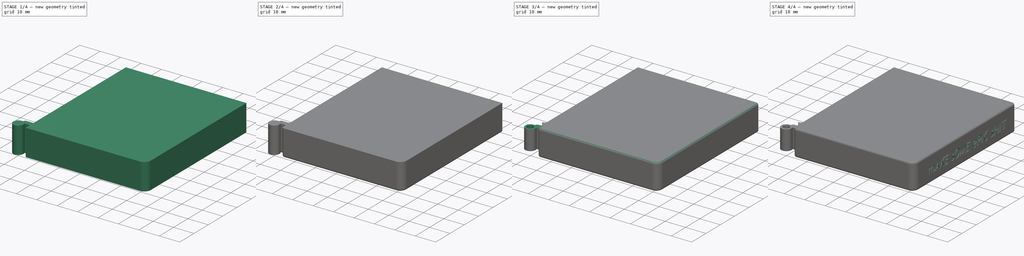
[diagram: build sequence overview — one tinted view per stage of 4, left to right]
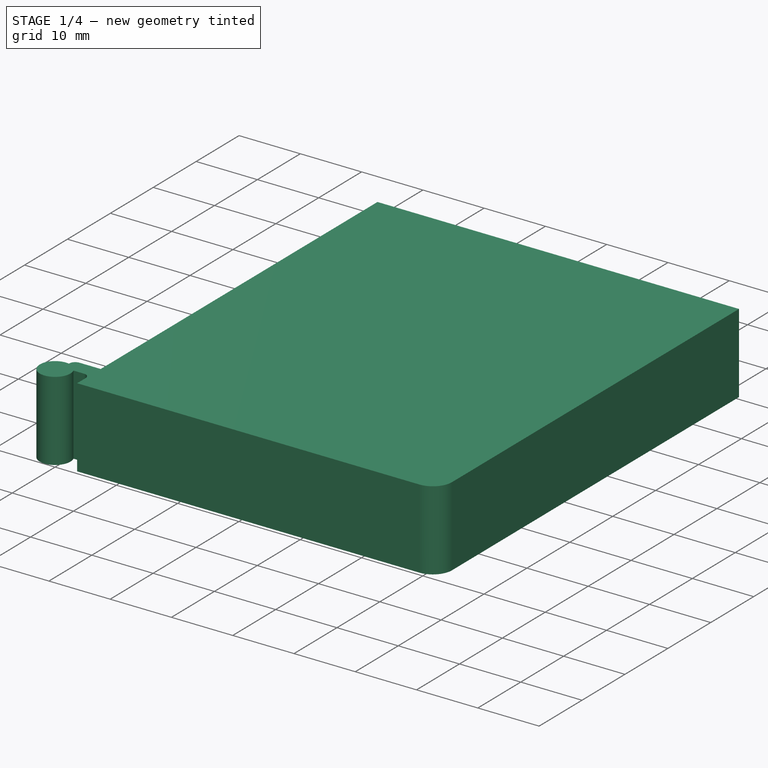
[diagram: stage 1 of 4 — iso view after this stage's code; geometry added in this stage tinted green]
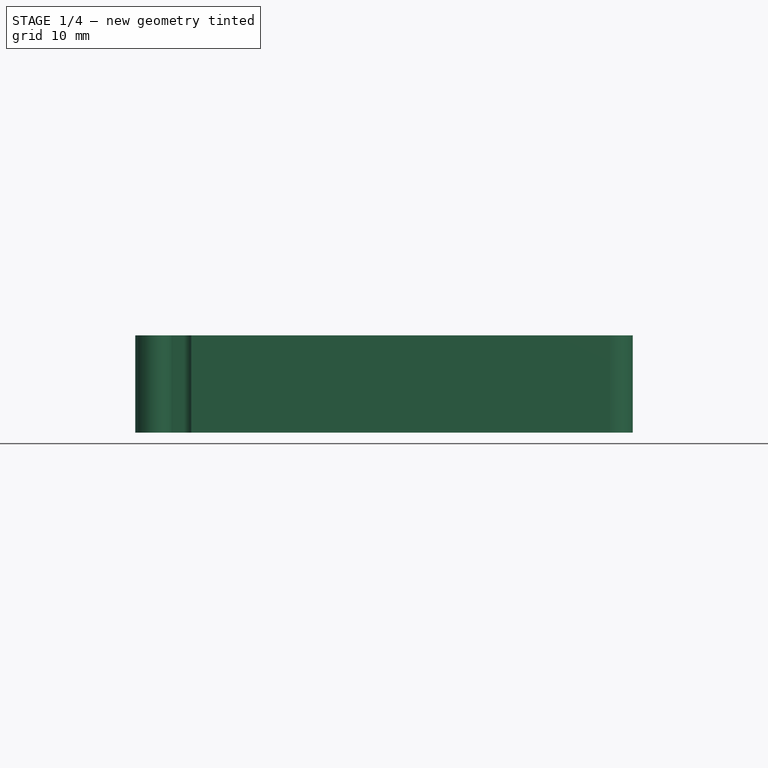
[diagram: stage 1 of 4 — front view after this stage's code; geometry added in this stage tinted green]
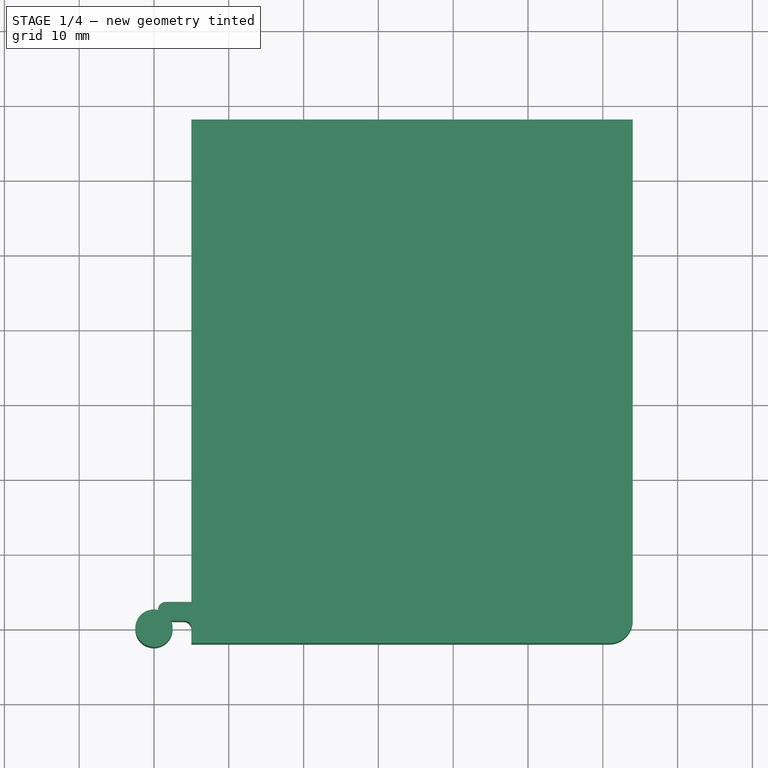
[diagram: stage 1 of 4 — top view after this stage's code; geometry added in this stage tinted green]
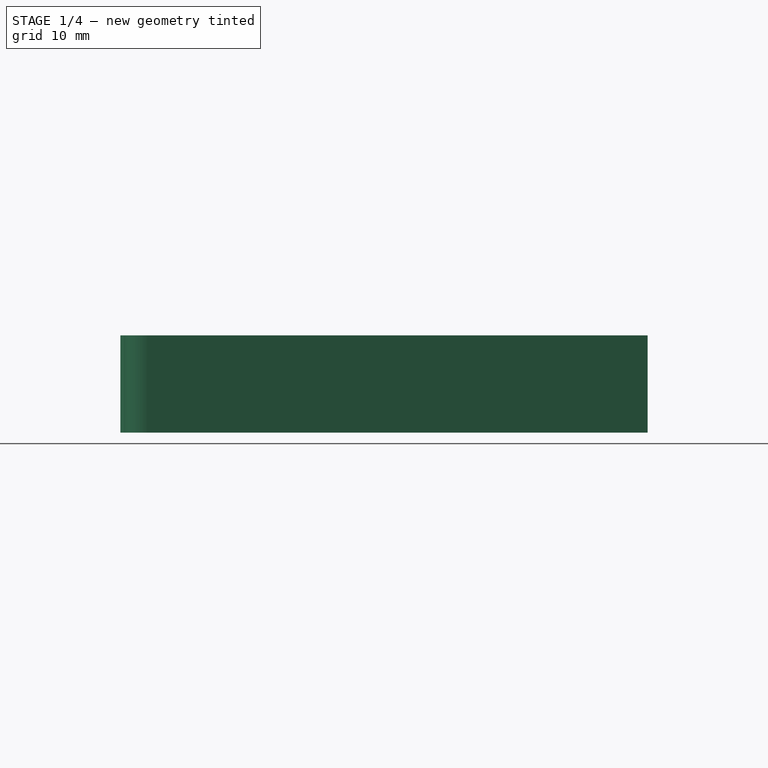
[diagram: stage 1 of 4 — right view after this stage's code; geometry added in this stage tinted green]
FCSTD DOCUMENT  (FreeCAD 1.0R39109 (Git))
Label: Card Holder 2
License: All rights reserved
LicenseURL: https://en.wikipedia.org/wiki/All_rights_reserved
objects: PartDesign::Fillet×6, Sketcher::SketchObject×5, PartDesign::Pocket×5, PartDesign::Plane×4, PartDesign::Pad×2, Part::Part2DObjectPython×2, PartDesign::Body×1
note: 56 computed .brp shape members not serialized (recipe doc carries the construction recipe); baked Part::Feature solids carry a one-line shape summary decoded from their .brp

FEATURE [Sketcher::SketchObject] Sketch
  ArcFitTolerance = 1e-06
  AttachmentSupport = -> [XY_Plane]
  FullyConstrained = true
  MakeInternals = false
  MapMode = 5
  sketch-geometry (11):
    g0: Circle CenterX=0 CenterY=0 CenterZ=0 NormalX=0 NormalY=0 NormalZ=1 AngleXU=0 Radius=2.5
    g1: LineSegment StartX=0.54 StartY=3.5 StartZ=0 EndX=0.54 EndY=1 EndZ=0
    g2: LineSegment StartX=0.54 StartY=1 StartZ=0 EndX=5 EndY=1 EndZ=0
    g3: LineSegment StartX=5 StartY=1 StartZ=0 EndX=5 EndY=3.5 EndZ=0
    g4: LineSegment StartX=5 StartY=3.5 StartZ=0 EndX=0.54 EndY=3.5 EndZ=0
    g5: LineSegment StartX=5 StartY=68 StartZ=0 EndX=5 EndY=-2 EndZ=0
    g6: LineSegment StartX=5 StartY=-2 StartZ=0 EndX=60.86 EndY=-2 EndZ=0
    g7: LineSegment StartX=64 StartY=1.14 StartZ=0 EndX=64 EndY=68 EndZ=0
    g8: LineSegment StartX=64 StartY=68 StartZ=0 EndX=5 EndY=68 EndZ=0
    g9: ArcOfCircle CenterX=60.86 CenterY=1.14 CenterZ=0 NormalX=0 NormalY=0 NormalZ=1 AngleXU=0 Radius=3.14 StartAngle=4.71239 EndAngle=6.28319
    g10: GeomPoint [constr] X=64 Y=-2 Z=0
  constraints (30):
    c: Coincident(g0,g-1)
    c: Diameter(g0) = 5
    c: Coincident(g1,g2)
    c: Coincident(g2,g3)
    c: Coincident(g3,g4)
    c: Coincident(g4,g1)
    c: Vertical(g1)
    c: Vertical(g3)
    c: Horizontal(g2)
    c: Horizontal(g4)
    c: DistanceY(g0,g1) = 1
    c: DistanceY(g1,g1) = 2.5
    c: DistanceX(g0,g1) = 0.54
    c: DistanceX(g0,g2) = 5
    c: Coincident(g5,g6)
    c: Coincident(g7,g8)
    c: Coincident(g8,g5)
    c: Vertical(g5)
    c: Vertical(g7)
    c: Horizontal(g6)
    c: Horizontal(g8)
    c: PointOnObject(g3,g5)
    c: DistanceX(g6,g10) = 59
    c: DistanceY(g5,g5) = 70
    c: DistanceY(g5,g2) = 3
    c: PointOnObject(g10,g6)
    c: PointOnObject(g10,g7)
    c: Tangent(g6,g9) = -1.5708
    c: Tangent(g7,g9) = -1.5708
    c: Radius(g9) = 3.14
FEATURE [PartDesign::Pad] Pad
  Direction = (0,0,1)
  Length = 13
  Length2 = 10
  Profile = -> Sketch
  ReferenceAxis = -> Sketch [N_Axis]
  Refine = true
  Suppressed = false
  Type = 0
FEATURE [PartDesign::Fillet] Fillet
  Base = -> Pad [Edge4]
  BaseFeature = -> Pad
  Radius = 1
  Refine = true
  SupportTransform = false
  Suppressed = false
  UseAllEdges = false
FEATURE [PartDesign::Fillet] Fillet001
  Base = -> Fillet [Edge34]
  BaseFeature = -> Fillet
  Radius = 1
  Refine = true
  SupportTransform = false
  Suppressed = false
  UseAllEdges = false
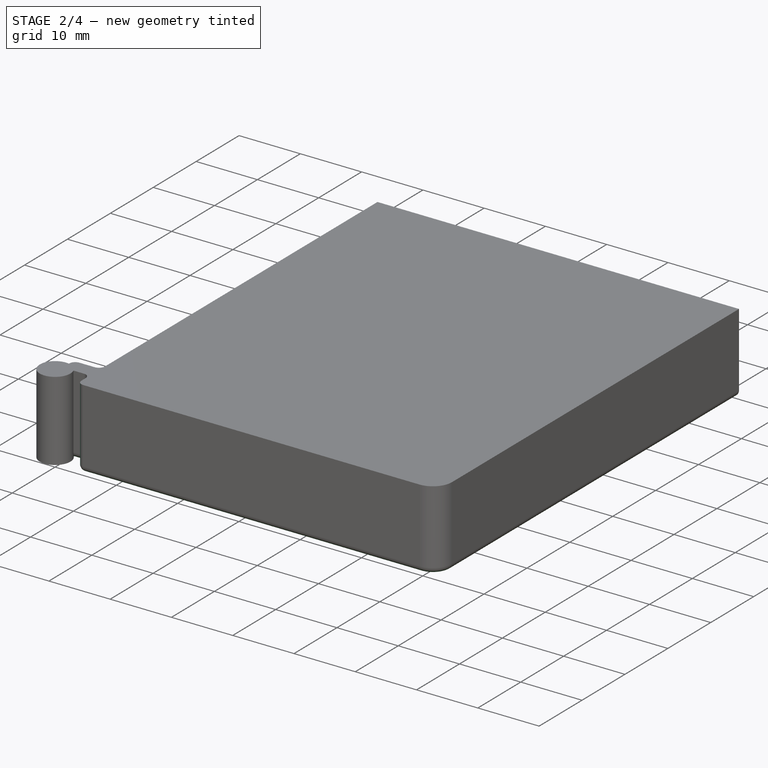
[diagram: stage 2 of 4 — iso view after this stage's code; geometry added in this stage tinted green]
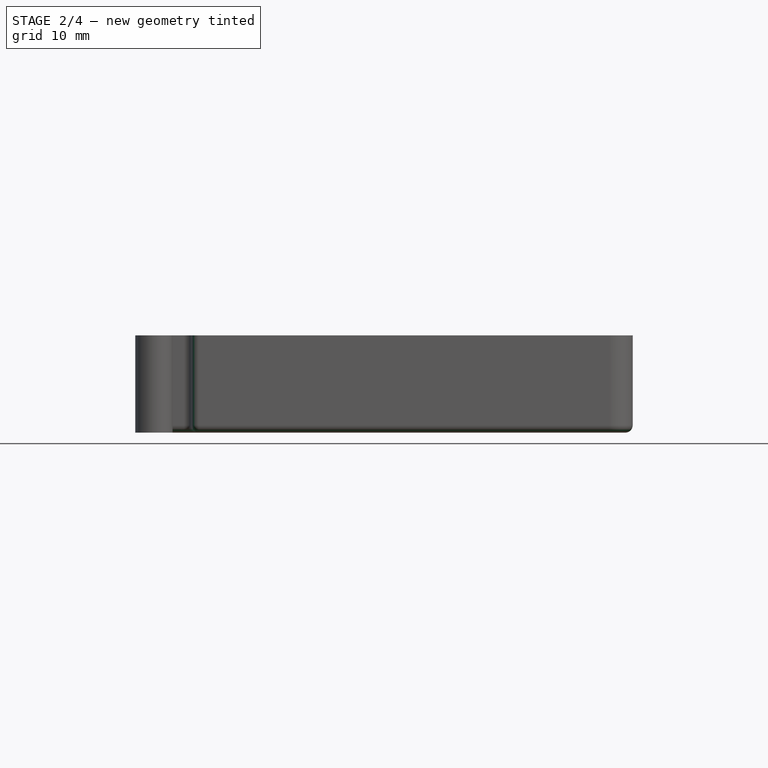
[diagram: stage 2 of 4 — front view after this stage's code; geometry added in this stage tinted green]
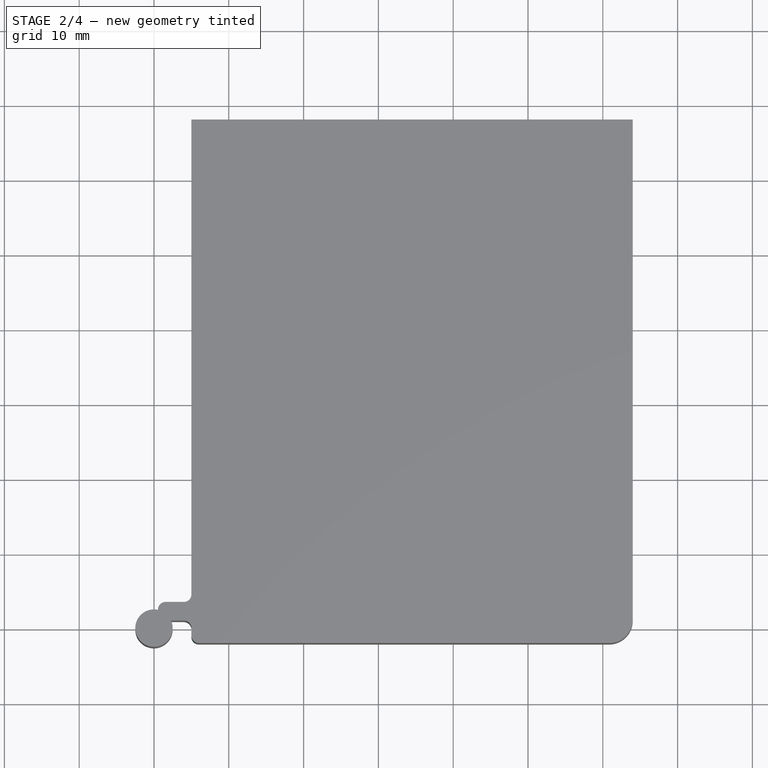
[diagram: stage 2 of 4 — top view after this stage's code; geometry added in this stage tinted green]
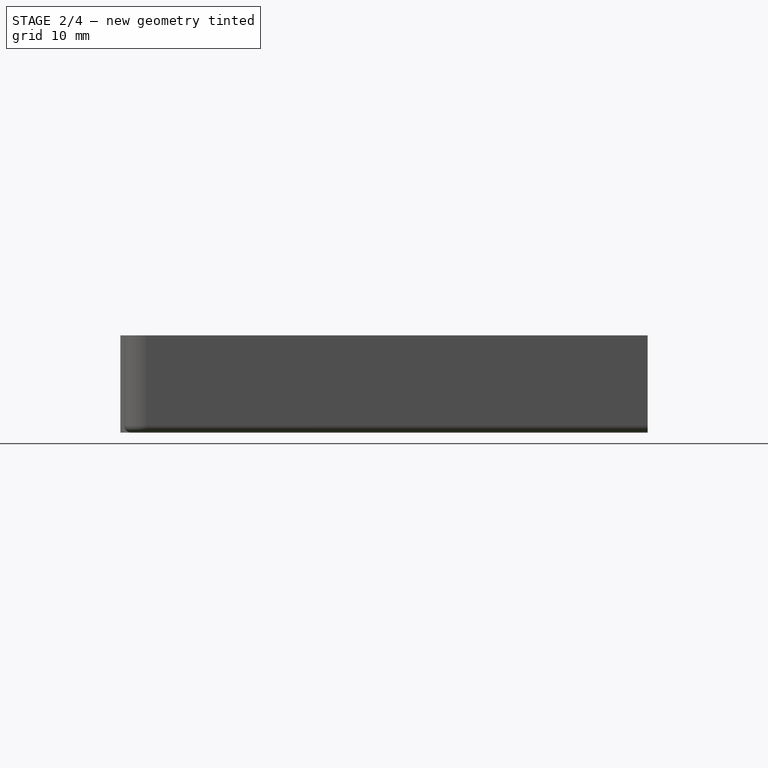
[diagram: stage 2 of 4 — right view after this stage's code; geometry added in this stage tinted green]
FEATURE [PartDesign::Fillet] Fillet002
  Base = -> Fillet001 [Edge22]
  BaseFeature = -> Fillet001
  Radius = 1
  Refine = true
  SupportTransform = false
  Suppressed = false
  UseAllEdges = false
FEATURE [PartDesign::Fillet] Fillet003
  Base = -> Fillet002 [Edge37]
  BaseFeature = -> Fillet002
  Radius = 1
  Refine = true
  SupportTransform = false
  Suppressed = false
  UseAllEdges = false
FEATURE [PartDesign::Fillet] Fillet004
  Base = -> Fillet003 [Edge1]
  BaseFeature = -> Fillet003
  Radius = 1
  Refine = true
  SupportTransform = false
  Suppressed = false
  UseAllEdges = false
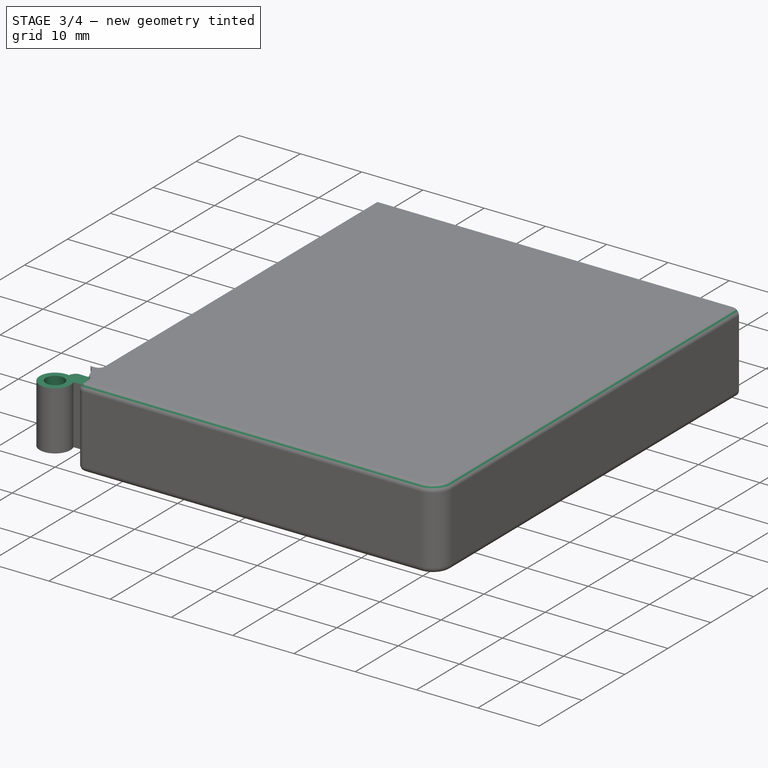
[diagram: stage 3 of 4 — iso view after this stage's code; geometry added in this stage tinted green]
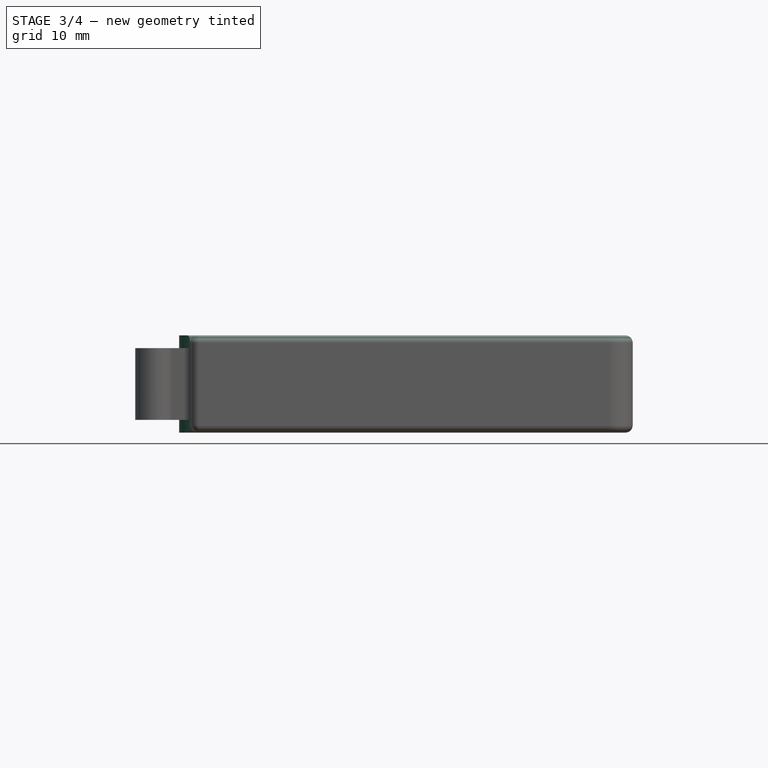
[diagram: stage 3 of 4 — front view after this stage's code; geometry added in this stage tinted green]
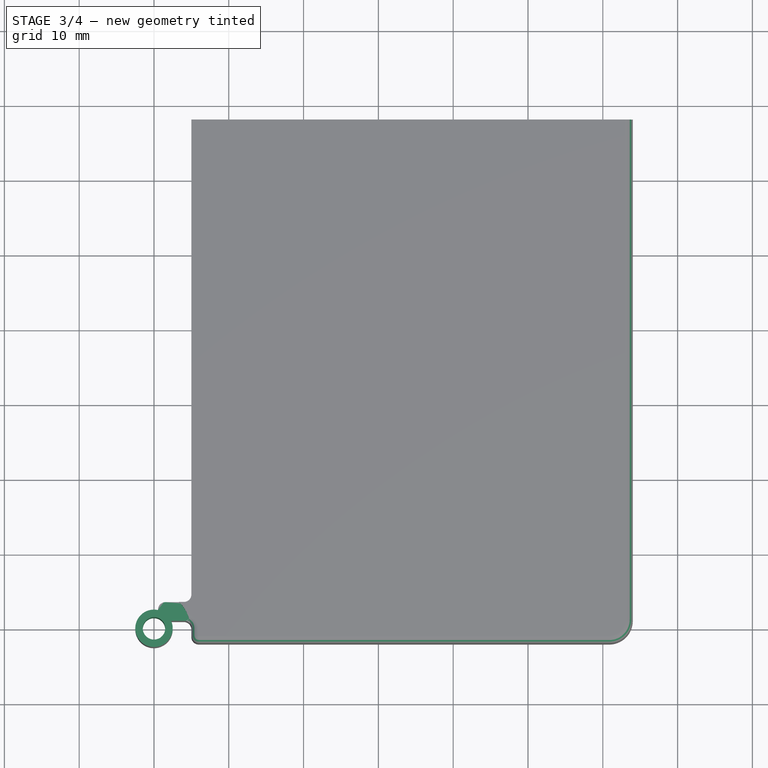
[diagram: stage 3 of 4 — top view after this stage's code; geometry added in this stage tinted green]
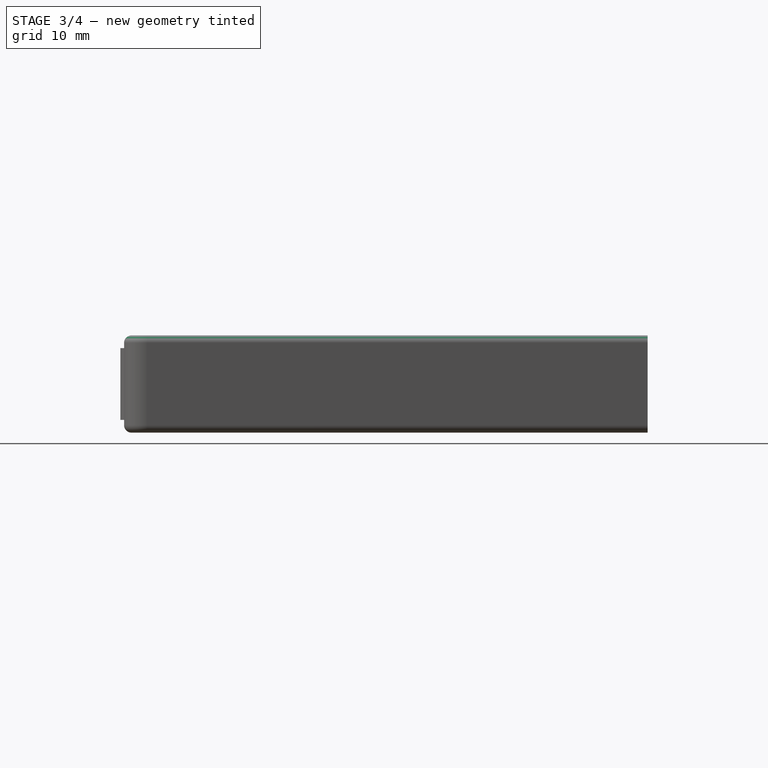
[diagram: stage 3 of 4 — right view after this stage's code; geometry added in this stage tinted green]
FEATURE [PartDesign::Fillet] Fillet005
  Base = -> Fillet004 [Edge48]
  BaseFeature = -> Fillet004
  Radius = 1
  Refine = true
  SupportTransform = false
  Suppressed = false
  UseAllEdges = false
FEATURE [PartDesign::Plane] DatumPlane
  AttachmentSupport = -> [Fillet005]
  Length = 60
  MapMode = 5
  Placement = pos=(0,0,13) rot=(0,0,1;0rad)
  ResizeMode = 0
  Width = 60
FEATURE [Sketcher::SketchObject] Sketch001
  ArcFitTolerance = 1e-06
  AttachmentSupport = -> [Fillet005]
  FullyConstrained = true
  MakeInternals = false
  MapMode = 5
  Placement = pos=(0,0,13) rot=(0,0,1;0rad)
  sketch-geometry (1):
    g0: Circle CenterX=0 CenterY=0 CenterZ=0 NormalX=0 NormalY=0 NormalZ=1 AngleXU=0 Radius=1.5
  constraints (2):
    c: Coincident(g0,g-1)
    c: Diameter(g0) = 3
FEATURE [PartDesign::Pocket] Pocket
  BaseFeature = -> Fillet005
  Direction = (0,0,-1)
  Length = 24
  Length2 = 5
  Profile = -> Sketch001
  ReferenceAxis = -> Sketch001 [N_Axis]
  Refine = true
  Suppressed = false
  Type = 0
FEATURE [PartDesign::Plane] DatumPlane001
  AttachmentSupport = -> [Pocket]
  Length = 60
  MapMode = 5
  Placement = pos=(0,0,13) rot=(0,0,1;0rad)
  ResizeMode = 0
  Width = 60
FEATURE [Sketcher::SketchObject] Sketch002
  ArcFitTolerance = 1e-06
  AttachmentSupport = -> [DatumPlane001]
  FullyConstrained = true
  MakeInternals = false
  MapMode = 5
  Placement = pos=(0,0,13) rot=(0,0,1;0rad)
  sketch-geometry (1):
    g0: Circle CenterX=0 CenterY=0 CenterZ=0 NormalX=0 NormalY=0 NormalZ=1 AngleXU=0 Radius=4.85
  constraints (2):
    c: Coincident(g0,g-1)
    c: Diameter(g0) = 9.7
FEATURE [PartDesign::Pocket] Pocket001
  BaseFeature = -> Pocket
  Direction = (0,0,-1)
  Length = 1.7
  Length2 = 5
  Profile = -> Sketch002
  ReferenceAxis = -> Sketch002 [N_Axis]
  Refine = true
  Suppressed = false
  Type = 0
FEATURE [PartDesign::Plane] DatumPlane002
  AttachmentSupport = -> [Pocket001]
  Length = 60
  MapMode = 5
  Placement = pos=(0,0,0) rot=(1,0,0;3.14159rad)
  ResizeMode = 0
  Width = 60
FEATURE [Sketcher::SketchObject] Sketch003
  ArcFitTolerance = 1e-06
  AttachmentSupport = -> [DatumPlane002]
  FullyConstrained = true
  MakeInternals = false
  MapMode = 5
  Placement = pos=(0,0,0) rot=(1,0,0;3.14159rad)
  sketch-geometry (1):
    g0: Circle CenterX=0 CenterY=0 CenterZ=0 NormalX=0 NormalY=0 NormalZ=1 AngleXU=0 Radius=4.85
  constraints (2):
    c: Coincident(g0,g-1)
    c: Diameter(g0) = 9.7
FEATURE [PartDesign::Pocket] Pocket002
  BaseFeature = -> Pocket001
  Direction = (0,0,1)
  Length = 1.7
  Length2 = 5
  Profile = -> Sketch003
  ReferenceAxis = -> Sketch003 [N_Axis]
  Refine = true
  Suppressed = false
  Type = 0
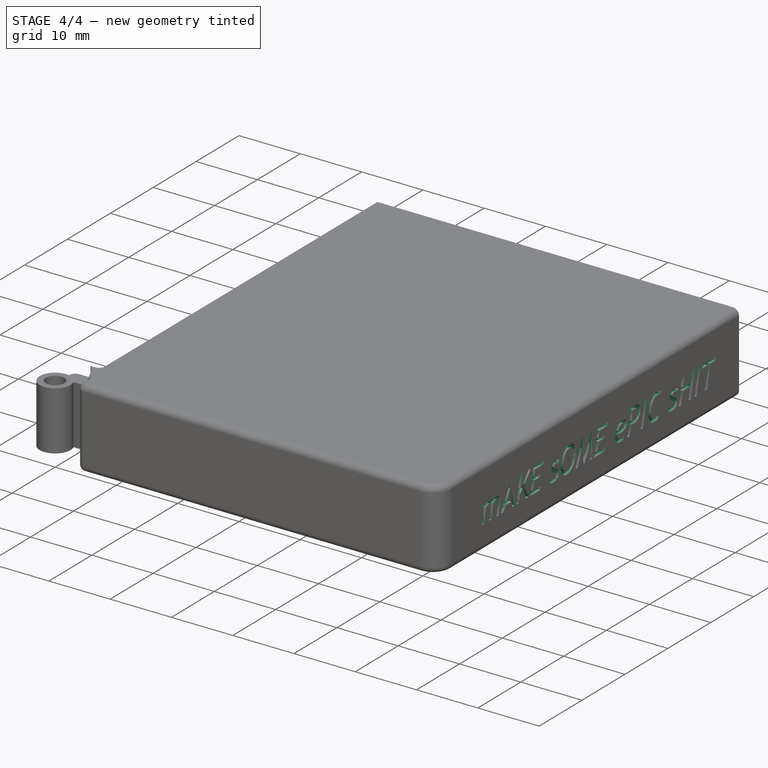
[diagram: stage 4 of 4 — iso view after this stage's code; geometry added in this stage tinted green]
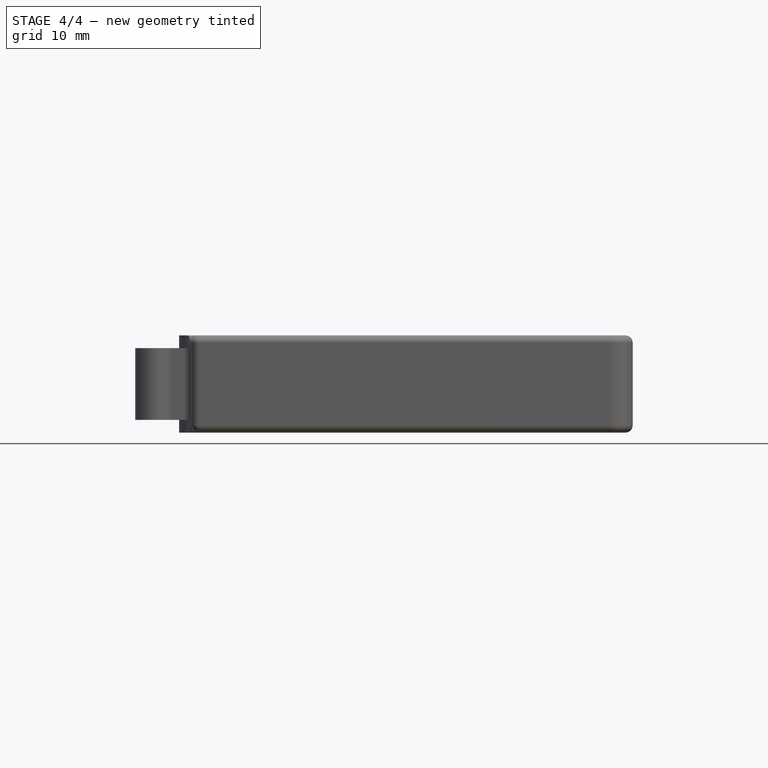
[diagram: stage 4 of 4 — front view after this stage's code; geometry added in this stage tinted green]
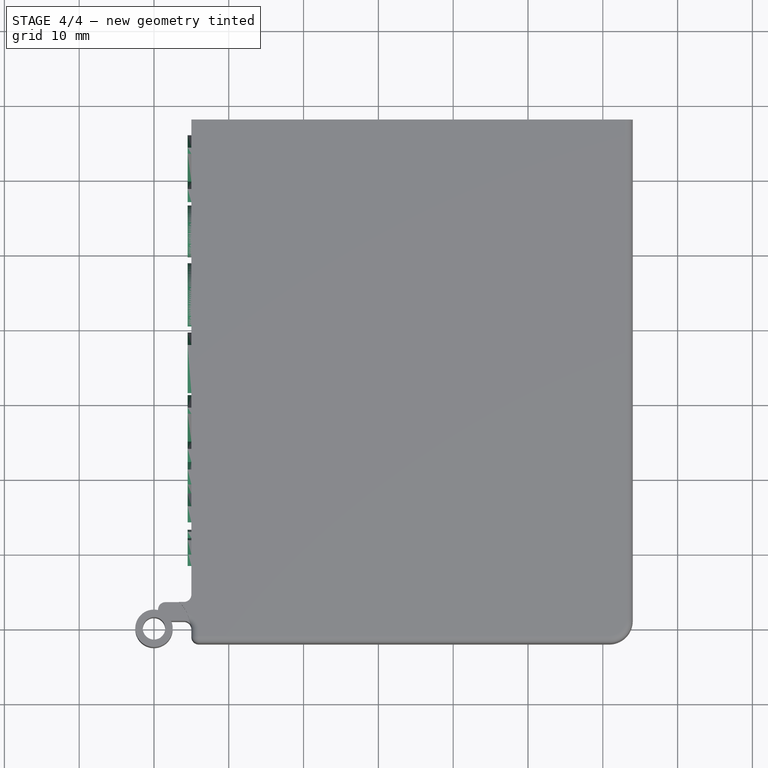
[diagram: stage 4 of 4 — top view after this stage's code; geometry added in this stage tinted green]
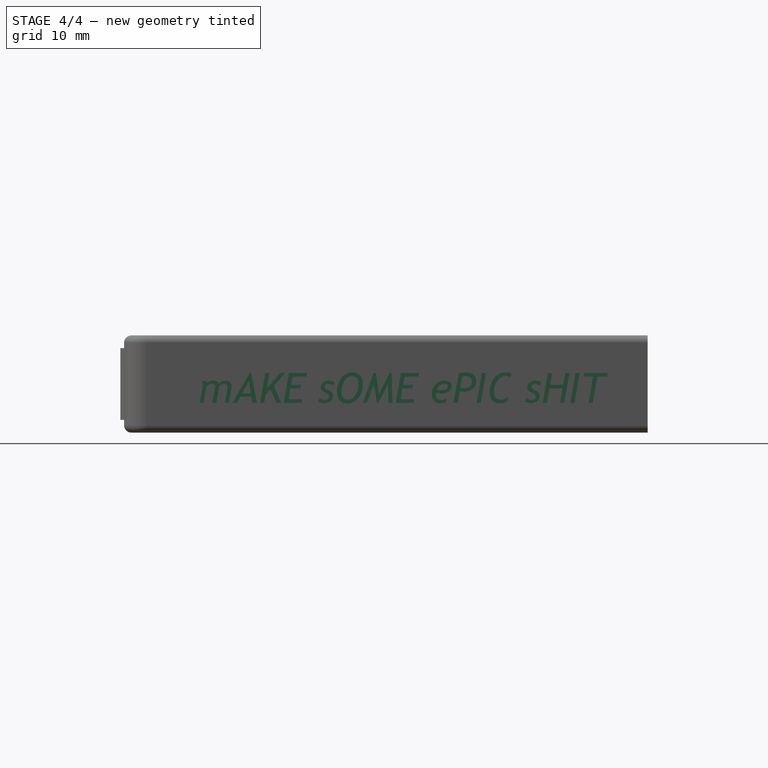
[diagram: stage 4 of 4 — right view after this stage's code; geometry added in this stage tinted green]
FEATURE [Part::Part2DObjectPython] ShapeString  # Draft 2D object (typed FeaturePython)
  FontFile = <path>
  Fuse = false
  Justification = 6
  JustificationReference = 0
  KeepLeftMargin = false
  MakeFace = true
  ObliqueAngle = 0
  Placement = pos=(5,66.0964,1.65581) rot=(0.57735,-0.57735,-0.57735;2.0944rad)
  ScaleToSize = true
  Size = 10
  String = NeGENxt
  Tracking = 0
FEATURE [Part::Part2DObjectPython] ShapeString001  # Draft 2D object (typed FeaturePython)
  FontFile = <path>
  Fuse = false
  Justification = 6
  JustificationReference = 0
  KeepLeftMargin = false
  MakeFace = true
  ObliqueAngle = 0
  Placement = pos=(64,8.10624,3.9766) rot=(0.57735,0.57735,0.57735;2.0944rad)
  ScaleToSize = true
  Size = 4
  String = mAKE sOME ePIC sHIT
  Tracking = 0
FEATURE [PartDesign::Pocket] Pocket003
  BaseFeature = -> Pocket002
  Direction = (-1,-1e-16,1e-16)
  Length = 0.5
  Length2 = 5
  Profile = -> ShapeString001
  ReferenceAxis = -> ShapeString001 [N_Axis]
  Refine = true
  Suppressed = false
  Type = 0
FEATURE [PartDesign::Plane] DatumPlane003
  AttachmentSupport = -> [Pocket003]
  Length = 60
  MapMode = 5
  Placement = pos=(0,68,0) rot=(0,0.707107,0.707107;3.14159rad)
  ResizeMode = 0
  Width = 60
FEATURE [Sketcher::SketchObject] Sketch004
  ArcFitTolerance = 1e-06
  AttachmentSupport = -> [DatumPlane003]
  FullyConstrained = true
  MakeInternals = false
  MapMode = 5
  Placement = pos=(0,68,0) rot=(0,0.707107,0.707107;3.14159rad)
  sketch-geometry (20):
    g0: LineSegment StartX=-61.72 StartY=4.71 StartZ=0 EndX=-61.72 EndY=3.21 EndZ=0
    g1: LineSegment StartX=-61.72 StartY=3.21 StartZ=0 EndX=-5.72 EndY=3.21 EndZ=0
    g2: LineSegment StartX=-5.72 StartY=3.21 StartZ=0 EndX=-5.72 EndY=4.71 EndZ=0
    g3: LineSegment StartX=-5.72 StartY=4.71 StartZ=0 EndX=-61.72 EndY=4.71 EndZ=0
    g4: LineSegment StartX=-61.72 StartY=7.21 StartZ=0 EndX=-61.72 EndY=5.71 EndZ=0
    g5: LineSegment StartX=-61.72 StartY=5.71 StartZ=0 EndX=-5.72 EndY=5.71 EndZ=0
    g6: LineSegment StartX=-5.72 StartY=5.71 StartZ=0 EndX=-5.72 EndY=7.21 EndZ=0
    g7: LineSegment StartX=-5.72 StartY=7.21 StartZ=0 EndX=-61.72 EndY=7.21 EndZ=0
    g8: LineSegment StartX=-61.72 StartY=9.71 StartZ=0 EndX=-61.72 EndY=8.21 EndZ=0
    g9: LineSegment StartX=-61.72 StartY=8.21 StartZ=0 EndX=-5.72 EndY=8.21 EndZ=0
    g10: LineSegment StartX=-5.72 StartY=8.21 StartZ=0 EndX=-5.72 EndY=9.71 EndZ=0
    g11: LineSegment StartX=-5.72 StartY=9.71 StartZ=0 EndX=-61.72 EndY=9.71 EndZ=0
    g12: LineSegment StartX=-61.72 StartY=12.21 StartZ=0 EndX=-61.72 EndY=10.71 EndZ=0
    g13: LineSegment StartX=-61.72 StartY=10.71 StartZ=0 EndX=-5.72 EndY=10.71 EndZ=0
    g14: LineSegment StartX=-5.72 StartY=10.71 StartZ=0 EndX=-5.72 EndY=12.21 EndZ=0
    g15: LineSegment StartX=-5.72 StartY=12.21 StartZ=0 EndX=-61.72 EndY=12.21 EndZ=0
    g16: LineSegment StartX=-61.72 StartY=2.21 StartZ=0 EndX=-61.72 EndY=0.71 EndZ=0
    g17: LineSegment StartX=-61.72 StartY=0.71 StartZ=0 EndX=-5.72 EndY=0.71 EndZ=0
    g18: LineSegment StartX=-5.72 StartY=0.71 StartZ=0 EndX=-5.72 EndY=2.21 EndZ=0
    g19: LineSegment StartX=-5.72 StartY=2.21 StartZ=0 EndX=-61.72 EndY=2.21 EndZ=0
  constraints (60):
    c: Coincident(g0,g1)
    c: Coincident(g1,g2)
    c: Coincident(g2,g3)
    c: Coincident(g3,g0)
    c: Vertical(g0)
    c: Vertical(g2)
    c: Horizontal(g1)
    c: Horizontal(g3)
    c: DistanceX(g3,g3) = 56
    c: DistanceY(g0,g0) = 1.5
    c: DistanceX(g1,g-1) = 5.72
    c: Coincident(g4,g5)
    c: Coincident(g5,g6)
    c: Coincident(g6,g7)
    c: Coincident(g7,g4)
    c: Vertical(g4)
    c: Vertical(g6)
    c: Horizontal(g5)
    c: Horizontal(g7)
    c: DistanceX(g7,g7) = 56
    c: DistanceY(g4,g4) = 1.5
    c: DistanceX(g5,g-1) = 5.72
    c: DistanceY(g0,g4) = 1
    c: Coincident(g8,g9)
    c: Coincident(g9,g10)
    c: Coincident(g10,g11)
    c: Coincident(g11,g8)
    c: Vertical(g8)
    c: Vertical(g10)
    c: Horizontal(g9)
    c: Horizontal(g11)
    c: DistanceX(g11,g11) = 56
    c: DistanceY(g8,g8) = 1.5
    c: DistanceX(g9,g-1) = 5.72
    c: Coincident(g12,g13)
    c: Coincident(g13,g14)
    c: Coincident(g14,g15)
    c: Coincident(g15,g12)
    c: Vertical(g12)
    c: Vertical(g14)
    c: Horizontal(g13)
    c: Horizontal(g15)
    c: DistanceX(g15,g15) = 56
    c: DistanceY(g12,g12) = 1.5
    c: DistanceX(g13,g-1) = 5.72
    c: DistanceY(g8,g12) = 1
    c: DistanceY(g4,g8) = 1
    c: Coincident(g16,g17)
    c: Coincident(g17,g18)
    c: Coincident(g18,g19)
    c: Coincident(g19,g16)
    c: Vertical(g16)
    c: Vertical(g18)
    c: Horizontal(g17)
    c: Horizontal(g19)
    c: DistanceX(g19,g19) = 56
    c: DistanceY(g16,g16) = 1.5
    c: DistanceX(g17,g-1) = 5.72
    c: DistanceY(g16,g0) = 1
    c: DistanceY(g-1,g14) = 12.21
FEATURE [PartDesign::Pocket] Pocket004
  BaseFeature = -> Pocket003
  Direction = (0,-1,2e-16)
  Length = 69.7
  Length2 = 5
  Profile = -> Sketch004
  ReferenceAxis = -> Sketch004 [N_Axis]
  Refine = true
  Suppressed = false
  Type = 0
FEATURE [PartDesign::Pad] Pad001
  BaseFeature = -> Pocket004
  Direction = (-1,1e-16,-1e-16)
  Length = 0.5
  Length2 = 10
  Profile = -> ShapeString
  ReferenceAxis = -> ShapeString [N_Axis]
  Refine = true
  Suppressed = false
  Type = 0
FEATURE [PartDesign::Body] Body
  AllowCompound = false
  Group = -> [Sketch,Pad,Fillet,Fillet001,Fillet002,Fillet003,Fillet004,Fillet005,DatumPlane,Sketch001,Pocket,DatumPlane001,Sketch002,Pocket001,DatumPlane002,Sketch003,Pocket002,ShapeString,ShapeString001,Pocket003,DatumPlane003,Sketch004,Pocket004,Pad001]
  Origin = -> Origin
  Tip = -> Pad001
note: 2 file-system paths scrubbed to <path> (originals preserved in the JSON sidecar)
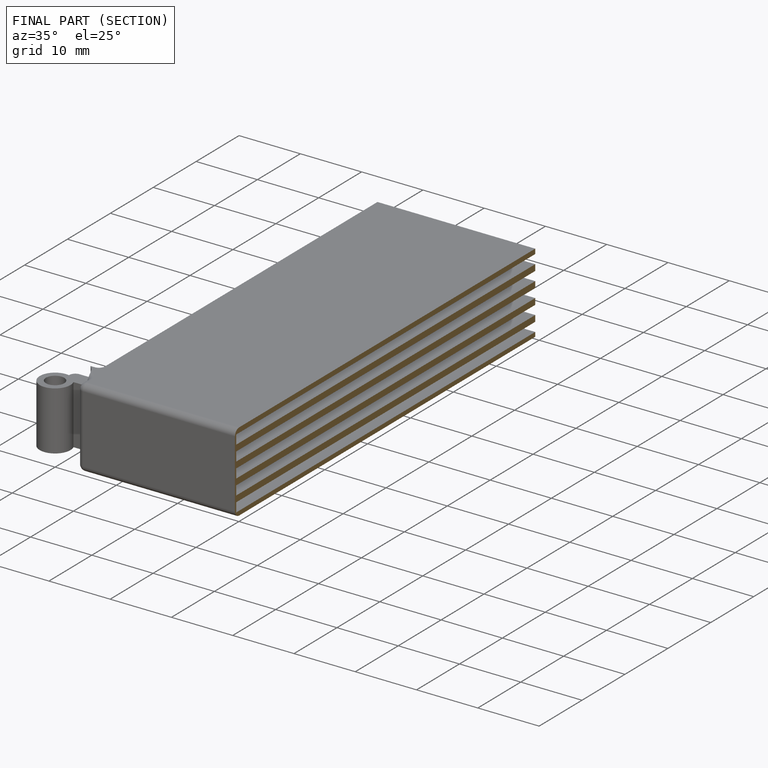
[diagram: finished part — half-section view (interior)]
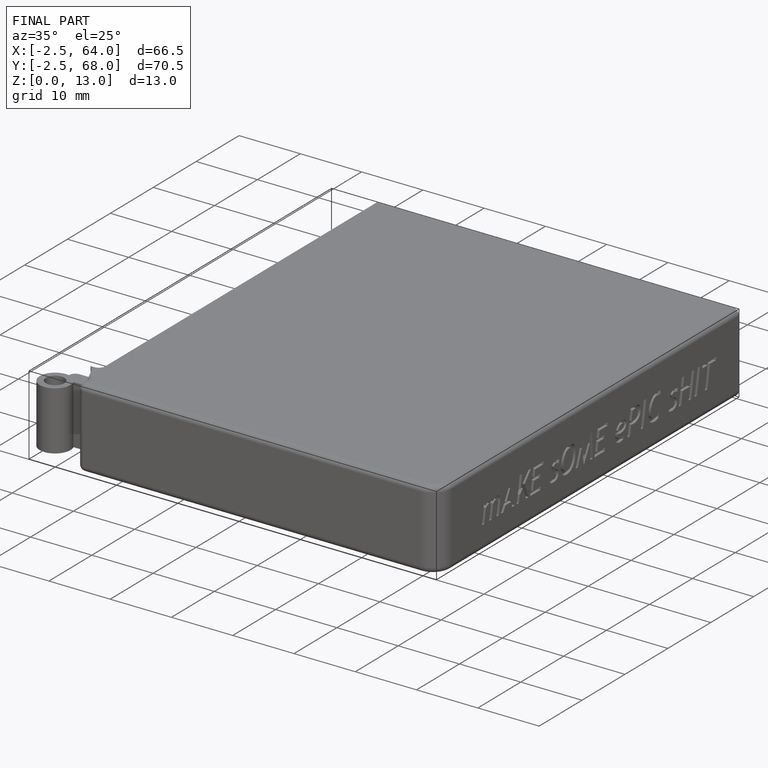
[diagram: finished part — iso view with bounding-box wireframe]
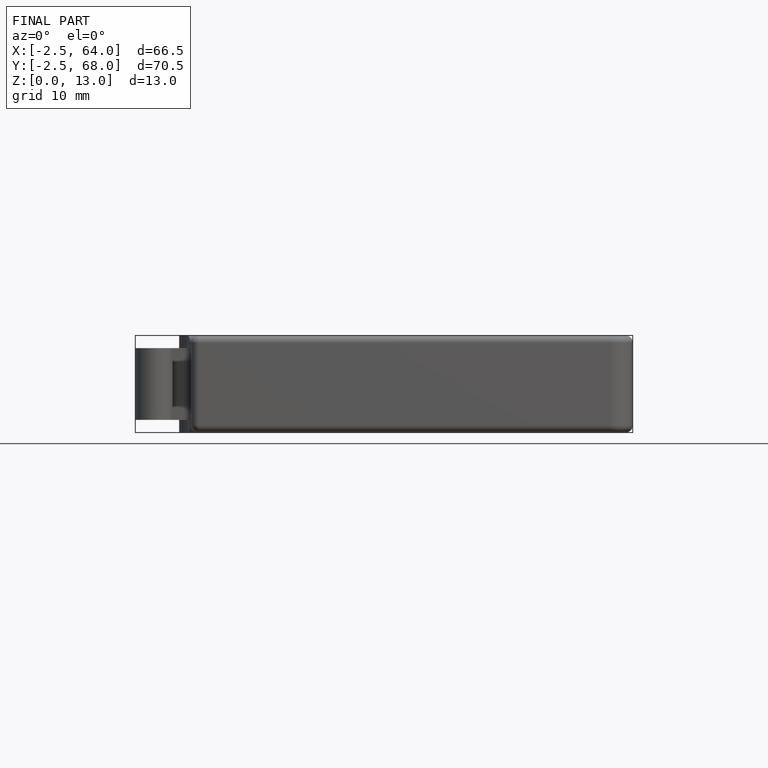
[diagram: finished part — front view with bounding-box wireframe]
